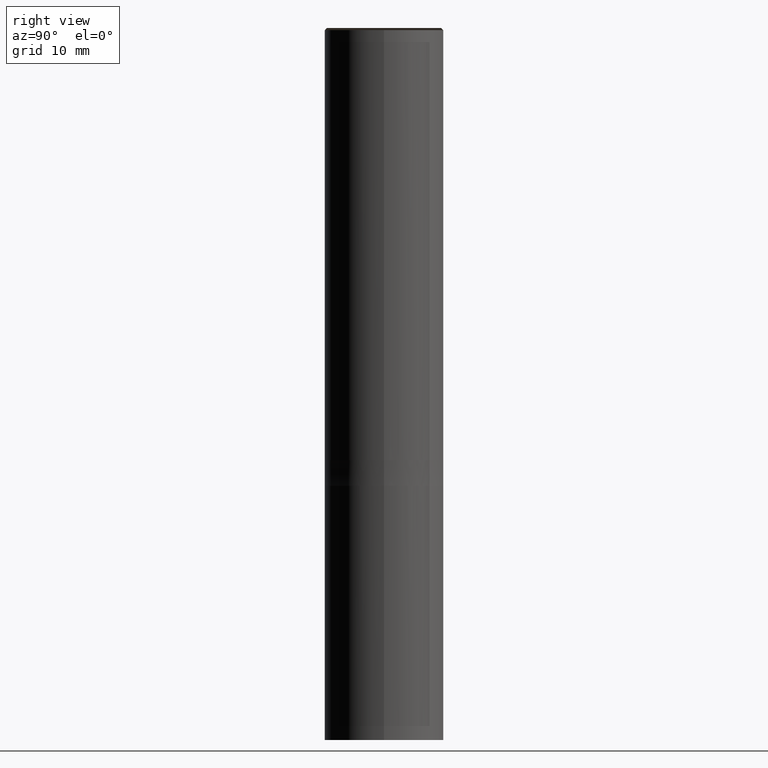
[diagram: clean part render]
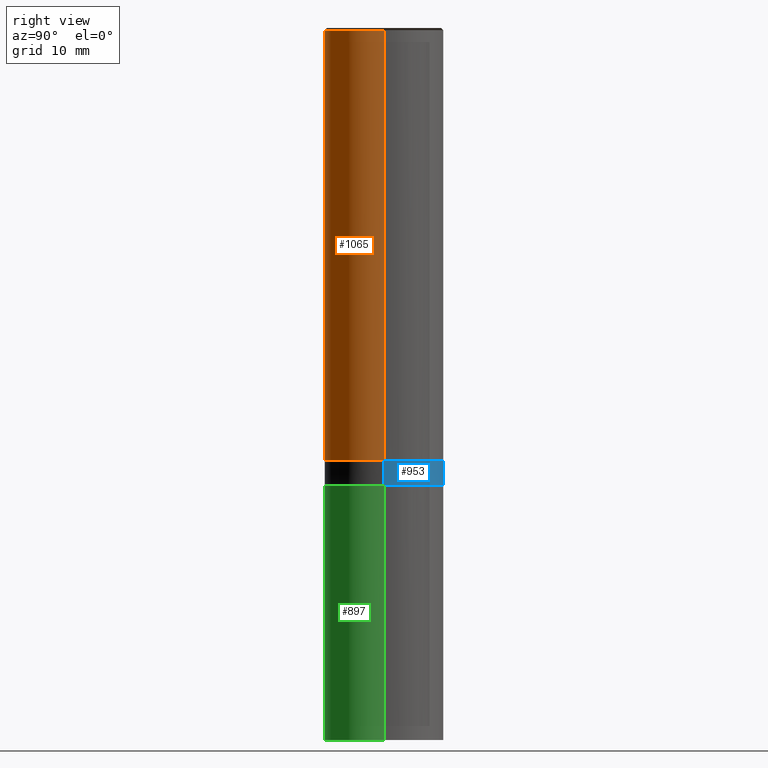
[diagram: same view with three faces highlighted in distinct colors, each labeled with its STEP entity id]
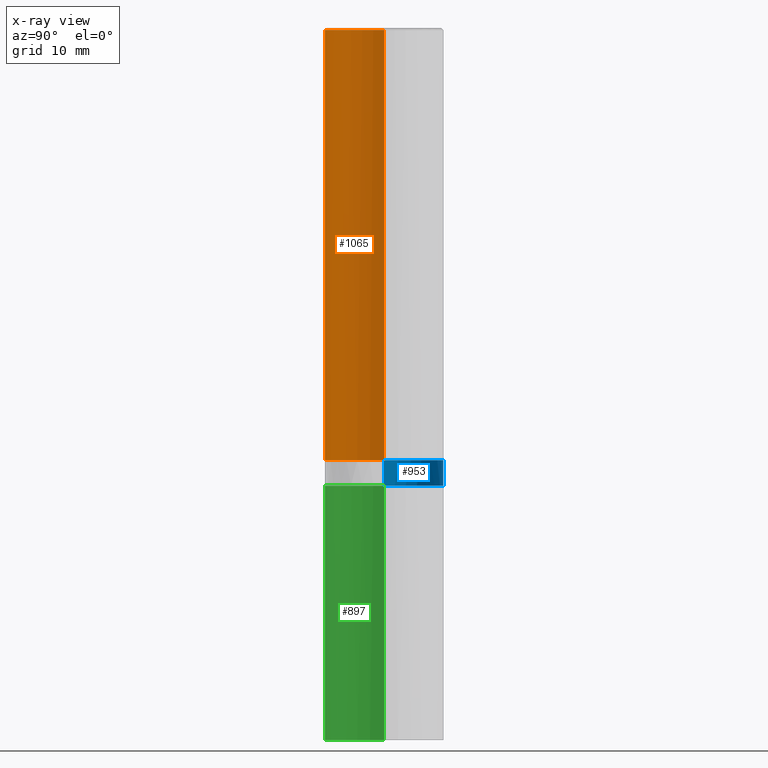
[diagram: x-ray of the same camera — body ghosted, the three highlighted faces saturated]
A machine part, right view with three faces highlighted in distinct colors.
The next image is the same camera in x-ray (body ghosted, the three faces saturated) — at least one of them is partly hidden behind the body in this view.
Their STEP definitions:

[orange] entity #1065 — the highlighted face is a freeform B-spline surface patch.
#780=CARTESIAN_POINT('',(7.0,0.0,0.0));
#784=CARTESIAN_POINT('',(-7.0,0.0,0.0));
#785=CARTESIAN_POINT('',(7.0,0.0,50.75));
#789=CARTESIAN_POINT('',(-7.0,0.0,50.75));
#796=CARTESIAN_POINT('',(-7.0,-7.0,0.0));
#797=CARTESIAN_POINT('',(0.0,-7.0,0.0));
#798=CARTESIAN_POINT('',(7.0,-7.0,0.0));
#799=CARTESIAN_POINT('',(-7.0,-7.0,50.75));
#800=CARTESIAN_POINT('',(0.0,-7.0,50.75));
#801=CARTESIAN_POINT('',(7.0,-7.0,50.75));
#1046=(
BOUNDED_SURFACE()
B_SPLINE_SURFACE(1,2,(
(#784,#796,#797,#798,#780),
(#789,#799,#800,#801,#785)
), .UNSPECIFIED.,.F.,.F.,.F.)
B_SPLINE_SURFACE_WITH_KNOTS((2,2),(3,2,3),(
0.0,1.0),(
0.0,0.5,1.0), .UNSPECIFIED.)
GEOMETRIC_REPRESENTATION_ITEM()
RATIONAL_B_SPLINE_SURFACE(((1.0,0.707106781187,1.0,0.707106781187,1.0),
(1.0,0.707106781187,1.0,0.707106781187,1.0)
))
REPRESENTATION_ITEM('')
SURFACE()
);
#1047=(
BOUNDED_CURVE()
B_SPLINE_CURVE(2,(#780,#798,#797,#796,#784),.UNSPECIFIED.,.F.,.F.)
B_SPLINE_CURVE_WITH_KNOTS((3,2,3),
(0.0,0.5,1.0),.UNSPECIFIED.)
CURVE()
GEOMETRIC_REPRESENTATION_ITEM()
RATIONAL_B_SPLINE_CURVE((1.0,0.707106781187,1.0,0.707106781187,1.0))
REPRESENTATION_ITEM('')
);
#1048=(
BOUNDED_CURVE()
B_SPLINE_CURVE(1,(#784,#789),.UNSPECIFIED.,.F.,.F.)
B_SPLINE_CURVE_WITH_KNOTS((2,2),
(0.0,1.0),.UNSPECIFIED.)
CURVE()
GEOMETRIC_REPRESENTATION_ITEM()
RATIONAL_B_SPLINE_CURVE((1.0,1.0))
REPRESENTATION_ITEM('')
);
#1049=(
BOUNDED_CURVE()
B_SPLINE_CURVE(2,(#789,#799,#800,#801,#785),.UNSPECIFIED.,.F.,.F.)
B_SPLINE_CURVE_WITH_KNOTS((3,2,3),
(0.0,0.5,1.0),.UNSPECIFIED.)
CURVE()
GEOMETRIC_REPRESENTATION_ITEM()
RATIONAL_B_SPLINE_CURVE((1.0,0.707106781187,1.0,0.707106781187,1.0))
REPRESENTATION_ITEM('')
);
#1050=(
BOUNDED_CURVE()
B_SPLINE_CURVE(1,(#785,#780),.UNSPECIFIED.,.F.,.F.)
B_SPLINE_CURVE_WITH_KNOTS((2,2),
(0.0,1.0),.UNSPECIFIED.)
CURVE()
GEOMETRIC_REPRESENTATION_ITEM()
RATIONAL_B_SPLINE_CURVE((1.0,1.0))
REPRESENTATION_ITEM('')
);
#1051=VERTEX_POINT('',#780);
#1052=VERTEX_POINT('',#784);
#1053=VERTEX_POINT('',#785);
#1054=VERTEX_POINT('',#789);
#1055=EDGE_CURVE('',#1051,#1052,#1047,.T.);
#1056=EDGE_CURVE('',#1052,#1054,#1048,.T.);
#1057=EDGE_CURVE('',#1054,#1053,#1049,.T.);
#1058=EDGE_CURVE('',#1053,#1051,#1050,.T.);
#1059=ORIENTED_EDGE('',*,*,#1055,.T.);
#1060=ORIENTED_EDGE('',*,*,#1056,.T.);
#1061=ORIENTED_EDGE('',*,*,#1057,.T.);
#1062=ORIENTED_EDGE('',*,*,#1058,.T.);
#1063=EDGE_LOOP('',(#1059,#1060,#1061,#1062));
#1064=FACE_OUTER_BOUND('',#1063,.T.);
#1065=ADVANCED_FACE('',(#1064),#1046,.T.);

[blue] entity #953 — the highlighted face is a freeform B-spline surface patch.
#768=CARTESIAN_POINT('',(7.0,0.0,-3.0));
#769=CARTESIAN_POINT('',(7.0,7.0,-3.0));
#770=CARTESIAN_POINT('',(0.0,7.0,-3.0));
#771=CARTESIAN_POINT('',(-7.0,7.0,-3.0));
#772=CARTESIAN_POINT('',(-7.0,0.0,-3.0));
#780=CARTESIAN_POINT('',(7.0,0.0,0.0));
#781=CARTESIAN_POINT('',(7.0,7.0,0.0));
#782=CARTESIAN_POINT('',(0.0,7.0,0.0));
#783=CARTESIAN_POINT('',(-7.0,7.0,0.0));
#784=CARTESIAN_POINT('',(-7.0,0.0,0.0));
#934=(
BOUNDED_SURFACE()
B_SPLINE_SURFACE(1,2,(
(#768,#769,#770,#771,#772),
(#780,#781,#782,#783,#784)
), .UNSPECIFIED.,.F.,.F.,.F.)
B_SPLINE_SURFACE_WITH_KNOTS((2,2),(3,2,3),(
0.0,1.0),(
0.0,0.5,1.0), .UNSPECIFIED.)
GEOMETRIC_REPRESENTATION_ITEM()
RATIONAL_B_SPLINE_SURFACE(((1.0,0.707106781187,1.0,0.707106781187,1.0),
(1.0,0.707106781187,1.0,0.707106781187,1.0)
))
REPRESENTATION_ITEM('')
SURFACE()
);
#935=(
BOUNDED_CURVE()
B_SPLINE_CURVE(2,(#772,#771,#770,#769,#768),.UNSPECIFIED.,.F.,.F.)
B_SPLINE_CURVE_WITH_KNOTS((3,2,3),
(0.0,0.5,1.0),.UNSPECIFIED.)
CURVE()
GEOMETRIC_REPRESENTATION_ITEM()
RATIONAL_B_SPLINE_CURVE((1.0,0.707106781187,1.0,0.707106781187,1.0))
REPRESENTATION_ITEM('')
);
#936=(
BOUNDED_CURVE()
B_SPLINE_CURVE(1,(#768,#780),.UNSPECIFIED.,.F.,.F.)
B_SPLINE_CURVE_WITH_KNOTS((2,2),
(0.0,1.0),.UNSPECIFIED.)
CURVE()
GEOMETRIC_REPRESENTATION_ITEM()
RATIONAL_B_SPLINE_CURVE((1.0,1.0))
REPRESENTATION_ITEM('')
);
#937=(
BOUNDED_CURVE()
B_SPLINE_CURVE(2,(#780,#781,#782,#783,#784),.UNSPECIFIED.,.F.,.F.)
B_SPLINE_CURVE_WITH_KNOTS((3,2,3),
(0.0,0.5,1.0),.UNSPECIFIED.)
CURVE()
GEOMETRIC_REPRESENTATION_ITEM()
RATIONAL_B_SPLINE_CURVE((1.0,0.707106781187,1.0,0.707106781187,1.0))
REPRESENTATION_ITEM('')
);
#938=(
BOUNDED_CURVE()
B_SPLINE_CURVE(1,(#784,#772),.UNSPECIFIED.,.F.,.F.)
B_SPLINE_CURVE_WITH_KNOTS((2,2),
(0.0,1.0),.UNSPECIFIED.)
CURVE()
GEOMETRIC_REPRESENTATION_ITEM()
RATIONAL_B_SPLINE_CURVE((1.0,1.0))
REPRESENTATION_ITEM('')
);
#939=VERTEX_POINT('',#768);
#940=VERTEX_POINT('',#772);
#941=VERTEX_POINT('',#780);
#942=VERTEX_POINT('',#784);
#943=EDGE_CURVE('',#940,#939,#935,.T.);
#944=EDGE_CURVE('',#939,#941,#936,.T.);
#945=EDGE_CURVE('',#941,#942,#937,.T.);
#946=EDGE_CURVE('',#942,#940,#938,.T.);
#947=ORIENTED_EDGE('',*,*,#943,.T.);
#948=ORIENTED_EDGE('',*,*,#944,.T.);
#949=ORIENTED_EDGE('',*,*,#945,.T.);
#950=ORIENTED_EDGE('',*,*,#946,.T.);
#951=EDGE_LOOP('',(#947,#948,#949,#950));
#952=FACE_OUTER_BOUND('',#951,.T.);
#953=ADVANCED_FACE('',(#952),#934,.T.);

[green] entity #897 — the highlighted face is a freeform B-spline surface patch.
#763=CARTESIAN_POINT('',(7.0,0.0,-33.0));
#767=CARTESIAN_POINT('',(-7.0,0.0,-33.0));
#768=CARTESIAN_POINT('',(7.0,0.0,-3.0));
#772=CARTESIAN_POINT('',(-7.0,0.0,-3.0));
#774=CARTESIAN_POINT('',(-7.0,-7.0,-33.0));
#775=CARTESIAN_POINT('',(0.0,-7.0,-33.0));
#776=CARTESIAN_POINT('',(7.0,-7.0,-33.0));
#777=CARTESIAN_POINT('',(-7.0,-7.0,-3.0));
#778=CARTESIAN_POINT('',(0.0,-7.0,-3.0));
#779=CARTESIAN_POINT('',(7.0,-7.0,-3.0));
#878=(
BOUNDED_SURFACE()
B_SPLINE_SURFACE(1,2,(
(#767,#774,#775,#776,#763),
(#772,#777,#778,#779,#768)
), .UNSPECIFIED.,.F.,.F.,.F.)
B_SPLINE_SURFACE_WITH_KNOTS((2,2),(3,2,3),(
0.0,1.0),(
0.0,0.5,1.0), .UNSPECIFIED.)
GEOMETRIC_REPRESENTATION_ITEM()
RATIONAL_B_SPLINE_SURFACE(((1.0,0.707106781187,1.0,0.707106781187,1.0),
(1.0,0.707106781187,1.0,0.707106781187,1.0)
))
REPRESENTATION_ITEM('')
SURFACE()
);
#879=(
BOUNDED_CURVE()
B_SPLINE_CURVE(2,(#763,#776,#775,#774,#767),.UNSPECIFIED.,.F.,.F.)
B_SPLINE_CURVE_WITH_KNOTS((3,2,3),
(0.0,0.5,1.0),.UNSPECIFIED.)
CURVE()
GEOMETRIC_REPRESENTATION_ITEM()
RATIONAL_B_SPLINE_CURVE((1.0,0.707106781187,1.0,0.707106781187,1.0))
REPRESENTATION_ITEM('')
);
#880=(
BOUNDED_CURVE()
B_SPLINE_CURVE(1,(#767,#772),.UNSPECIFIED.,.F.,.F.)
B_SPLINE_CURVE_WITH_KNOTS((2,2),
(0.0,1.0),.UNSPECIFIED.)
CURVE()
GEOMETRIC_REPRESENTATION_ITEM()
RATIONAL_B_SPLINE_CURVE((1.0,1.0))
REPRESENTATION_ITEM('')
);
#881=(
BOUNDED_CURVE()
B_SPLINE_CURVE(2,(#772,#777,#778,#779,#768),.UNSPECIFIED.,.F.,.F.)
B_SPLINE_CURVE_WITH_KNOTS((3,2,3),
(0.0,0.5,1.0),.UNSPECIFIED.)
CURVE()
GEOMETRIC_REPRESENTATION_ITEM()
RATIONAL_B_SPLINE_CURVE((1.0,0.707106781187,1.0,0.707106781187,1.0))
REPRESENTATION_ITEM('')
);
#882=(
BOUNDED_CURVE()
B_SPLINE_CURVE(1,(#768,#763),.UNSPECIFIED.,.F.,.F.)
B_SPLINE_CURVE_WITH_KNOTS((2,2),
(0.0,1.0),.UNSPECIFIED.)
CURVE()
GEOMETRIC_REPRESENTATION_ITEM()
RATIONAL_B_SPLINE_CURVE((1.0,1.0))
REPRESENTATION_ITEM('')
);
#883=VERTEX_POINT('',#763);
#884=VERTEX_POINT('',#767);
#885=VERTEX_POINT('',#768);
#886=VERTEX_POINT('',#772);
#887=EDGE_CURVE('',#883,#884,#879,.T.);
#888=EDGE_CURVE('',#884,#886,#880,.T.);
#889=EDGE_CURVE('',#886,#885,#881,.T.);
#890=EDGE_CURVE('',#885,#883,#882,.T.);
#891=ORIENTED_EDGE('',*,*,#887,.T.);
#892=ORIENTED_EDGE('',*,*,#888,.T.);
#893=ORIENTED_EDGE('',*,*,#889,.T.);
#894=ORIENTED_EDGE('',*,*,#890,.T.);
#895=EDGE_LOOP('',(#891,#892,#893,#894));
#896=FACE_OUTER_BOUND('',#895,.T.);
#897=ADVANCED_FACE('',(#896),#878,.T.);